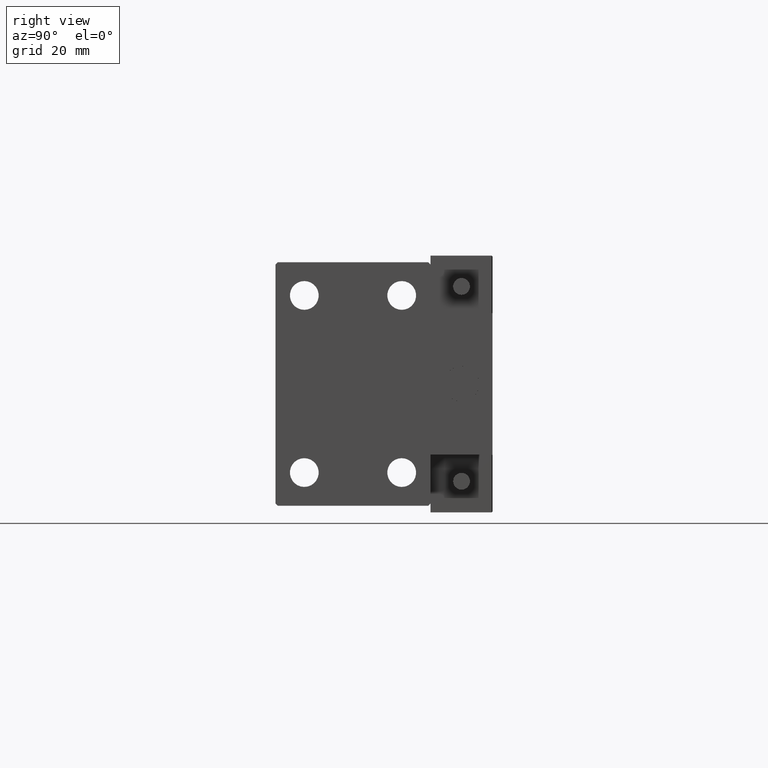
[diagram: clean part render]
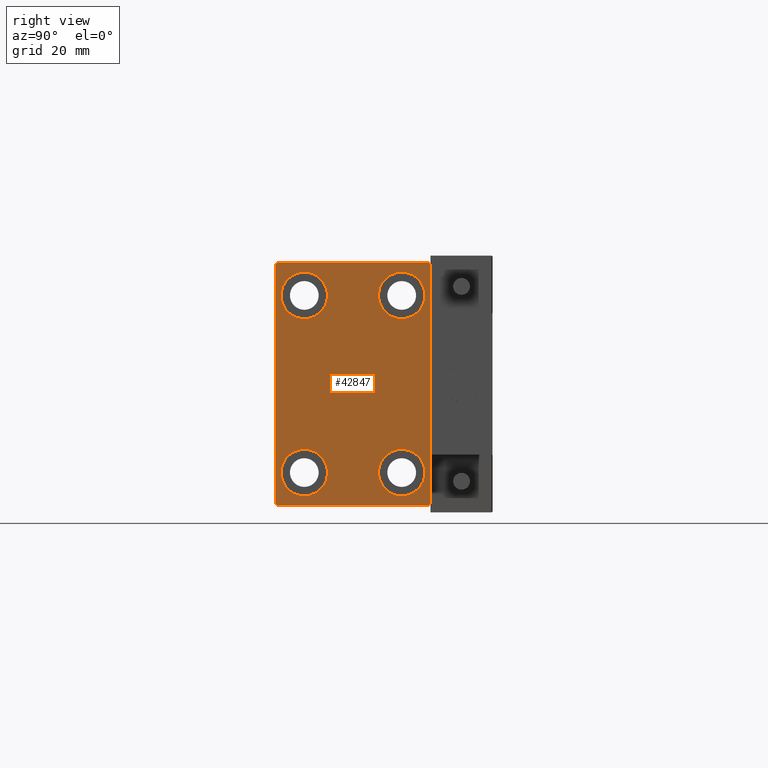
[diagram: same view with one face highlighted and labeled with its STEP entity id]
A machine part, right view. The second image highlights one B-rep face of the part: STEP entity #42847.
In plain terms, the highlighted planar face has unit normal (1, 0, 0).
Its self-contained STEP definition (entity closure, byte-faithful):
#74 = LINE ( 'NONE', #15560, #34863 ) ;
#255 = CIRCLE ( 'NONE', #5970, 5.250000000000000888 ) ;
#493 = EDGE_LOOP ( 'NONE', ( #8082, #6951 ) ) ;
#550 = CARTESIAN_POINT ( 'NONE',  ( 76.00000000000000000, -11.00000000000000355, 20.00000000000000000 ) ) ;
#1618 = EDGE_CURVE ( 'NONE', #48963, #48847, #3175, .T. ) ;
#1888 = PLANE ( 'NONE',  #46762 ) ;
#2773 = EDGE_CURVE ( 'NONE', #17728, #34538, #46116, .T. ) ;
#3175 = CIRCLE ( 'NONE', #33945, 5.250000000000000888 ) ;
#3544 = ORIENTED_EDGE ( 'NONE', *, *, #15644, .T. ) ;
#3972 = CARTESIAN_POINT ( 'NONE',  ( 76.00000000000000000, -11.00000000000000355, -20.00000000000000000 ) ) ;
#4758 = EDGE_CURVE ( 'NONE', #48022, #17120, #30272, .T. ) ;
#4769 = CARTESIAN_POINT ( 'NONE',  ( 76.00000000000000000, 17.00000000000000711, -27.50000000000000355 ) ) ;
#4785 = EDGE_CURVE ( 'NONE', #23193, #6700, #5672, .T. ) ;
#5065 = CARTESIAN_POINT ( 'NONE',  ( 76.00000000000000000, -22.24999999999998579, 22.24999999999998579 ) ) ;
#5672 = CIRCLE ( 'NONE', #34013, 5.250000000000000888 ) ;
#5750 = EDGE_CURVE ( 'NONE', #5769, #48022, #74, .T. ) ;
#5769 = VERTEX_POINT ( 'NONE', #42917 ) ;
#5782 = ORIENTED_EDGE ( 'NONE', *, *, #10306, .T. ) ;
#5970 = AXIS2_PLACEMENT_3D ( 'NONE', #550, #40539, #35539 ) ;
#6700 = VERTEX_POINT ( 'NONE', #12717 ) ;
#6951 = ORIENTED_EDGE ( 'NONE', *, *, #28116, .T. ) ;
#7019 = CARTESIAN_POINT ( 'NONE',  ( 76.00000000000000000, 17.50000000000000711, -27.00000000000000355 ) ) ;
#7520 = CARTESIAN_POINT ( 'NONE',  ( 76.00000000000000000, 22.25000000000000711, -22.25000000000000711 ) ) ;
#8082 = ORIENTED_EDGE ( 'NONE', *, *, #1618, .T. ) ;
#9636 = EDGE_LOOP ( 'NONE', ( #10488, #3544 ) ) ;
#9731 = LINE ( 'NONE', #37339, #23540 ) ;
#10102 = CARTESIAN_POINT ( 'NONE',  ( 76.00000000000000000, -11.00000000000000355, 20.00000000000000000 ) ) ;
#10306 = EDGE_CURVE ( 'NONE', #14576, #32574, #9731, .T. ) ;
#10488 = ORIENTED_EDGE ( 'NONE', *, *, #2773, .T. ) ;
#10834 = DIRECTION ( 'NONE',  ( -1.000000000000000000, -0.000000000000000000, -0.000000000000000000 ) ) ;
#11305 = LINE ( 'NONE', #7520, #12547 ) ;
#11762 = DIRECTION ( 'NONE',  ( 0.000000000000000000, -1.000000000000000000, -1.982541115402065110E-16 ) ) ;
#11952 = VECTOR ( 'NONE', #38655, 1000.000000000000114 ) ;
#12547 = VECTOR ( 'NONE', #19158, 1000.000000000000114 ) ;
#12717 = CARTESIAN_POINT ( 'NONE',  ( 76.00000000000000000, 11.00000000000000355, -25.25000000000000000 ) ) ;
#13545 = CARTESIAN_POINT ( 'NONE',  ( 76.00000000000000000, 0.000000000000000000, 0.000000000000000000 ) ) ;
#13869 = VERTEX_POINT ( 'NONE', #40888 ) ;
#14134 = EDGE_LOOP ( 'NONE', ( #15085, #30409 ) ) ;
#14576 = VERTEX_POINT ( 'NONE', #7019 ) ;
#14642 = CARTESIAN_POINT ( 'NONE',  ( 76.00000000000000000, -11.00000000000000355, -20.00000000000000000 ) ) ;
#14945 = CARTESIAN_POINT ( 'NONE',  ( 76.00000000000000000, 11.00000000000000355, 20.00000000000000000 ) ) ;
#15085 = ORIENTED_EDGE ( 'NONE', *, *, #19864, .T. ) ;
#15560 = CARTESIAN_POINT ( 'NONE',  ( 76.00000000000000000, 17.50000000000000000, 27.50000000000000355 ) ) ;
#15644 = EDGE_CURVE ( 'NONE', #34538, #17728, #35081, .T. ) ;
#15649 = DIRECTION ( 'NONE',  ( 0.000000000000000000, 0.000000000000000000, 1.000000000000000000 ) ) ;
#15996 = DIRECTION ( 'NONE',  ( -1.000000000000000000, -0.000000000000000000, -0.000000000000000000 ) ) ;
#16491 = DIRECTION ( 'NONE',  ( 0.000000000000000000, -0.7071067811865474617, -0.7071067811865474617 ) ) ;
#16745 = EDGE_CURVE ( 'NONE', #6700, #23193, #44835, .T. ) ;
#17120 = VERTEX_POINT ( 'NONE', #24494 ) ;
#17192 = DIRECTION ( 'NONE',  ( 0.000000000000000000, 0.000000000000000000, 1.000000000000000000 ) ) ;
#17728 = VERTEX_POINT ( 'NONE', #40532 ) ;
#18955 = CARTESIAN_POINT ( 'NONE',  ( 76.00000000000000000, -22.25000000000024869, -22.24999999999963407 ) ) ;
#19158 = DIRECTION ( 'NONE',  ( -0.000000000000000000, 0.7071067811865474617, 0.7071067811865474617 ) ) ;
#19435 = DIRECTION ( 'NONE',  ( -1.000000000000000000, -0.000000000000000000, -0.000000000000000000 ) ) ;
#19713 = CARTESIAN_POINT ( 'NONE',  ( 76.00000000000000000, -11.00000000000000355, -14.75000000000000000 ) ) ;
#19772 = EDGE_CURVE ( 'NONE', #17120, #26073, #22995, .T. ) ;
#19864 = EDGE_CURVE ( 'NONE', #33208, #38872, #44657, .T. ) ;
#20194 = DIRECTION ( 'NONE',  ( 0.000000000000000000, 1.000000000000000000, 0.000000000000000000 ) ) ;
#20548 = CARTESIAN_POINT ( 'NONE',  ( 76.00000000000000000, 11.00000000000000355, -20.00000000000000000 ) ) ;
#21547 = EDGE_LOOP ( 'NONE', ( #24116, #45602, #49485, #42696, #26196, #22193, #5782, #35928 ) ) ;
#21961 = VECTOR ( 'NONE', #46051, 1000.000000000000000 ) ;
#22193 = ORIENTED_EDGE ( 'NONE', *, *, #31595, .T. ) ;
#22258 = DIRECTION ( 'NONE',  ( -1.000000000000000000, -0.000000000000000000, -0.000000000000000000 ) ) ;
#22995 = LINE ( 'NONE', #34155, #21961 ) ;
#23040 = DIRECTION ( 'NONE',  ( -1.000000000000000000, -0.000000000000000000, -0.000000000000000000 ) ) ;
#23193 = VERTEX_POINT ( 'NONE', #24166 ) ;
#23540 = VECTOR ( 'NONE', #37092, 1000.000000000000000 ) ;
#24116 = ORIENTED_EDGE ( 'NONE', *, *, #5750, .T. ) ;
#24166 = CARTESIAN_POINT ( 'NONE',  ( 76.00000000000000000, 11.00000000000000355, -14.75000000000000000 ) ) ;
#24375 = AXIS2_PLACEMENT_3D ( 'NONE', #14642, #22258, #33669 ) ;
#24446 = FACE_BOUND ( 'NONE', #493, .T. ) ;
#24494 = CARTESIAN_POINT ( 'NONE',  ( 76.00000000000000000, -17.50000000000000000, 26.99999999999998224 ) ) ;
#26073 = VERTEX_POINT ( 'NONE', #33231 ) ;
#26196 = ORIENTED_EDGE ( 'NONE', *, *, #41407, .T. ) ;
#26285 = DIRECTION ( 'NONE',  ( 0.000000000000000000, 0.000000000000000000, 1.000000000000000000 ) ) ;
#26415 = CARTESIAN_POINT ( 'NONE',  ( 76.00000000000000000, -16.99999999999998579, 27.49999999999999645 ) ) ;
#26489 = AXIS2_PLACEMENT_3D ( 'NONE', #3972, #19435, #15649 ) ;
#27004 = AXIS2_PLACEMENT_3D ( 'NONE', #30093, #10834, #26285 ) ;
#27236 = EDGE_CURVE ( 'NONE', #26073, #13869, #42763, .T. ) ;
#27506 = VECTOR ( 'NONE', #16491, 1000.000000000000114 ) ;
#27722 = DIRECTION ( 'NONE',  ( -1.000000000000000000, -0.000000000000000000, -0.000000000000000000 ) ) ;
#28116 = EDGE_CURVE ( 'NONE', #48847, #48963, #255, .T. ) ;
#29726 = VECTOR ( 'NONE', #20194, 1000.000000000000000 ) ;
#30093 = CARTESIAN_POINT ( 'NONE',  ( 76.00000000000000000, 11.00000000000000355, -20.00000000000000000 ) ) ;
#30212 = VECTOR ( 'NONE', #42515, 1000.000000000000000 ) ;
#30272 = LINE ( 'NONE', #5065, #27506 ) ;
#30409 = ORIENTED_EDGE ( 'NONE', *, *, #41531, .T. ) ;
#30856 = CARTESIAN_POINT ( 'NONE',  ( 76.00000000000000000, -17.50000000000000000, -27.50000000000000355 ) ) ;
#31561 = CARTESIAN_POINT ( 'NONE',  ( 76.00000000000000000, 22.25000000000000355, 22.25000000000000355 ) ) ;
#31595 = EDGE_CURVE ( 'NONE', #33558, #14576, #11305, .T. ) ;
#31608 = LINE ( 'NONE', #30856, #29726 ) ;
#32574 = VERTEX_POINT ( 'NONE', #41189 ) ;
#33208 = VERTEX_POINT ( 'NONE', #42616 ) ;
#33231 = CARTESIAN_POINT ( 'NONE',  ( 76.00000000000000000, -17.50000000000000000, -27.00000000000000355 ) ) ;
#33558 = VERTEX_POINT ( 'NONE', #4769 ) ;
#33669 = DIRECTION ( 'NONE',  ( 0.000000000000000000, 0.000000000000000000, 1.000000000000000000 ) ) ;
#33734 = CARTESIAN_POINT ( 'NONE',  ( 76.00000000000000000, -11.00000000000000355, 25.25000000000000000 ) ) ;
#33945 = AXIS2_PLACEMENT_3D ( 'NONE', #10102, #36446, #17192 ) ;
#34013 = AXIS2_PLACEMENT_3D ( 'NONE', #20548, #15996, #43354 ) ;
#34155 = CARTESIAN_POINT ( 'NONE',  ( 76.00000000000000000, -17.50000000000000000, 27.49999999999999645 ) ) ;
#34538 = VERTEX_POINT ( 'NONE', #37852 ) ;
#34863 = VECTOR ( 'NONE', #11762, 1000.000000000000000 ) ;
#35081 = CIRCLE ( 'NONE', #41573, 5.250000000000000888 ) ;
#35539 = DIRECTION ( 'NONE',  ( 0.000000000000000000, 0.000000000000000000, 1.000000000000000000 ) ) ;
#35928 = ORIENTED_EDGE ( 'NONE', *, *, #42682, .T. ) ;
#36446 = DIRECTION ( 'NONE',  ( -1.000000000000000000, -0.000000000000000000, -0.000000000000000000 ) ) ;
#36608 = FACE_BOUND ( 'NONE', #14134, .T. ) ;
#37092 = DIRECTION ( 'NONE',  ( 0.000000000000000000, -1.261617073437677752E-16, 1.000000000000000000 ) ) ;
#37339 = CARTESIAN_POINT ( 'NONE',  ( 76.00000000000000000, 17.50000000000000711, -27.50000000000000355 ) ) ;
#37852 = CARTESIAN_POINT ( 'NONE',  ( 76.00000000000000000, 11.00000000000000355, 25.25000000000000000 ) ) ;
#37997 = DIRECTION ( 'NONE',  ( 0.000000000000000000, 0.000000000000000000, 1.000000000000000000 ) ) ;
#38655 = DIRECTION ( 'NONE',  ( -0.000000000000000000, -0.7071067811865474617, 0.7071067811865474617 ) ) ;
#38872 = VERTEX_POINT ( 'NONE', #19713 ) ;
#39145 = CARTESIAN_POINT ( 'NONE',  ( 76.00000000000000000, 11.00000000000000355, 20.00000000000000000 ) ) ;
#39450 = CIRCLE ( 'NONE', #26489, 5.250000000000000888 ) ;
#40008 = DIRECTION ( 'NONE',  ( 0.000000000000000000, 0.000000000000000000, -1.000000000000000000 ) ) ;
#40258 = DIRECTION ( 'NONE',  ( 1.000000000000000000, 0.000000000000000000, 0.000000000000000000 ) ) ;
#40413 = FACE_OUTER_BOUND ( 'NONE', #21547, .T. ) ;
#40532 = CARTESIAN_POINT ( 'NONE',  ( 76.00000000000000000, 11.00000000000000355, 14.75000000000000000 ) ) ;
#40539 = DIRECTION ( 'NONE',  ( -1.000000000000000000, -0.000000000000000000, -0.000000000000000000 ) ) ;
#40888 = CARTESIAN_POINT ( 'NONE',  ( 76.00000000000000000, -17.00000000000001421, -27.50000000000000355 ) ) ;
#41189 = CARTESIAN_POINT ( 'NONE',  ( 76.00000000000000000, 17.50000000000000000, 27.00000000000000355 ) ) ;
#41407 = EDGE_CURVE ( 'NONE', #13869, #33558, #31608, .T. ) ;
#41455 = ORIENTED_EDGE ( 'NONE', *, *, #16745, .T. ) ;
#41531 = EDGE_CURVE ( 'NONE', #38872, #33208, #39450, .T. ) ;
#41573 = AXIS2_PLACEMENT_3D ( 'NONE', #14945, #23040, #37997 ) ;
#41602 = EDGE_LOOP ( 'NONE', ( #41455, #42898 ) ) ;
#42515 = DIRECTION ( 'NONE',  ( -0.000000000000000000, 0.7071067811865378028, -0.7071067811865573427 ) ) ;
#42616 = CARTESIAN_POINT ( 'NONE',  ( 76.00000000000000000, -11.00000000000000355, -25.25000000000000000 ) ) ;
#42682 = EDGE_CURVE ( 'NONE', #32574, #5769, #46526, .T. ) ;
#42696 = ORIENTED_EDGE ( 'NONE', *, *, #27236, .T. ) ;
#42763 = LINE ( 'NONE', #18955, #30212 ) ;
#42847 = ADVANCED_FACE ( 'NONE', ( #43963, #24446, #44221, #36608, #40413 ), #1888, .T. ) ;
#42898 = ORIENTED_EDGE ( 'NONE', *, *, #4785, .T. ) ;
#42899 = AXIS2_PLACEMENT_3D ( 'NONE', #39145, #27722, #42938 ) ;
#42917 = CARTESIAN_POINT ( 'NONE',  ( 76.00000000000000000, 17.00000000000000000, 27.50000000000000355 ) ) ;
#42938 = DIRECTION ( 'NONE',  ( 0.000000000000000000, 0.000000000000000000, 1.000000000000000000 ) ) ;
#43354 = DIRECTION ( 'NONE',  ( 0.000000000000000000, 0.000000000000000000, 1.000000000000000000 ) ) ;
#43963 = FACE_BOUND ( 'NONE', #41602, .T. ) ;
#44221 = FACE_BOUND ( 'NONE', #9636, .T. ) ;
#44657 = CIRCLE ( 'NONE', #24375, 5.250000000000000888 ) ;
#44835 = CIRCLE ( 'NONE', #27004, 5.250000000000000888 ) ;
#45602 = ORIENTED_EDGE ( 'NONE', *, *, #4758, .T. ) ;
#46051 = DIRECTION ( 'NONE',  ( 0.000000000000000000, 0.000000000000000000, -1.000000000000000000 ) ) ;
#46116 = CIRCLE ( 'NONE', #42899, 5.250000000000000888 ) ;
#46526 = LINE ( 'NONE', #31561, #11952 ) ;
#46631 = CARTESIAN_POINT ( 'NONE',  ( 76.00000000000000000, -11.00000000000000355, 14.75000000000000000 ) ) ;
#46762 = AXIS2_PLACEMENT_3D ( 'NONE', #13545, #40258, #40008 ) ;
#48022 = VERTEX_POINT ( 'NONE', #26415 ) ;
#48847 = VERTEX_POINT ( 'NONE', #33734 ) ;
#48963 = VERTEX_POINT ( 'NONE', #46631 ) ;
#49485 = ORIENTED_EDGE ( 'NONE', *, *, #19772, .T. ) ;